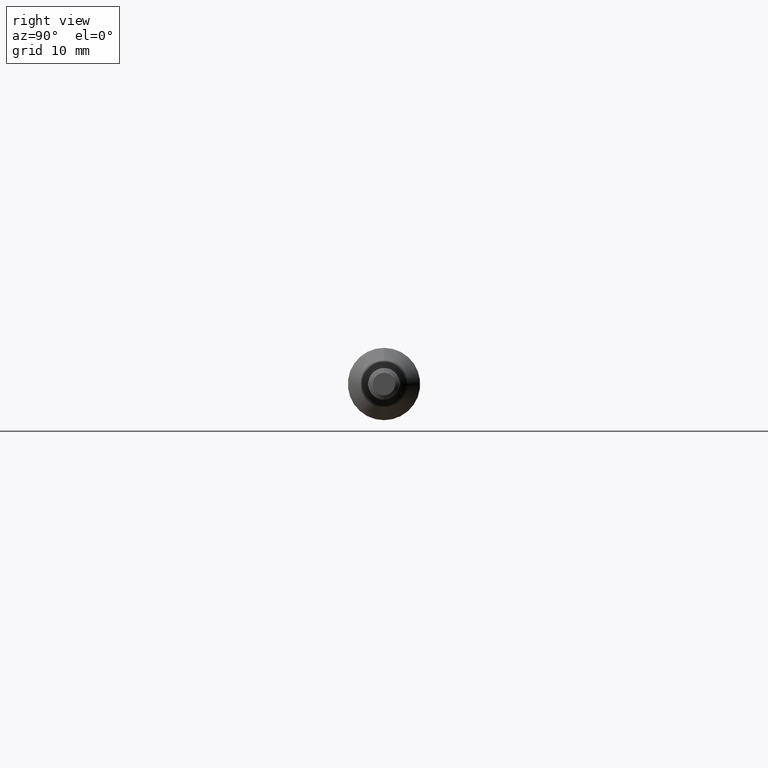
[diagram: clean part render]
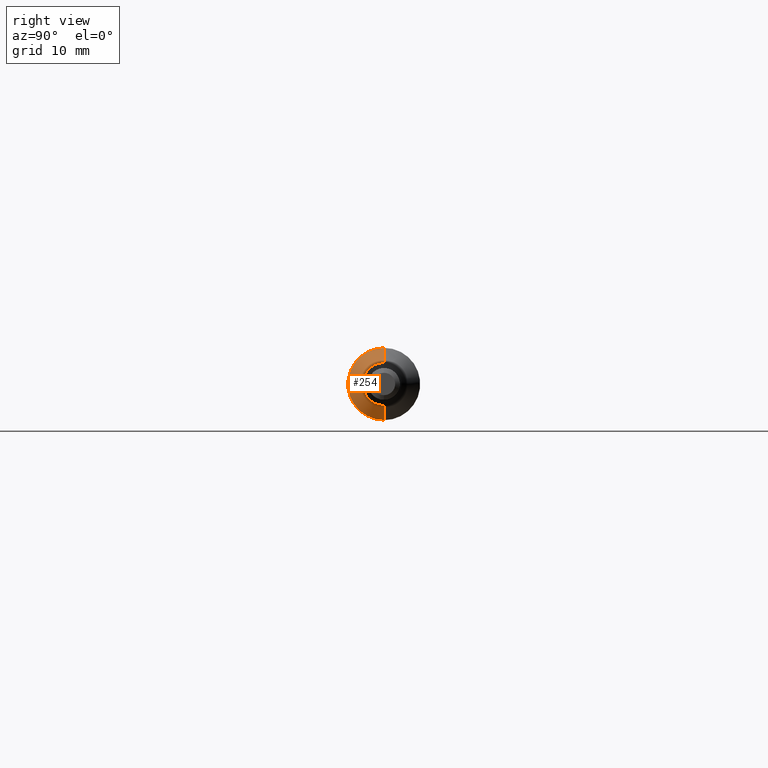
[diagram: same view with one face highlighted and labeled with its STEP entity id]
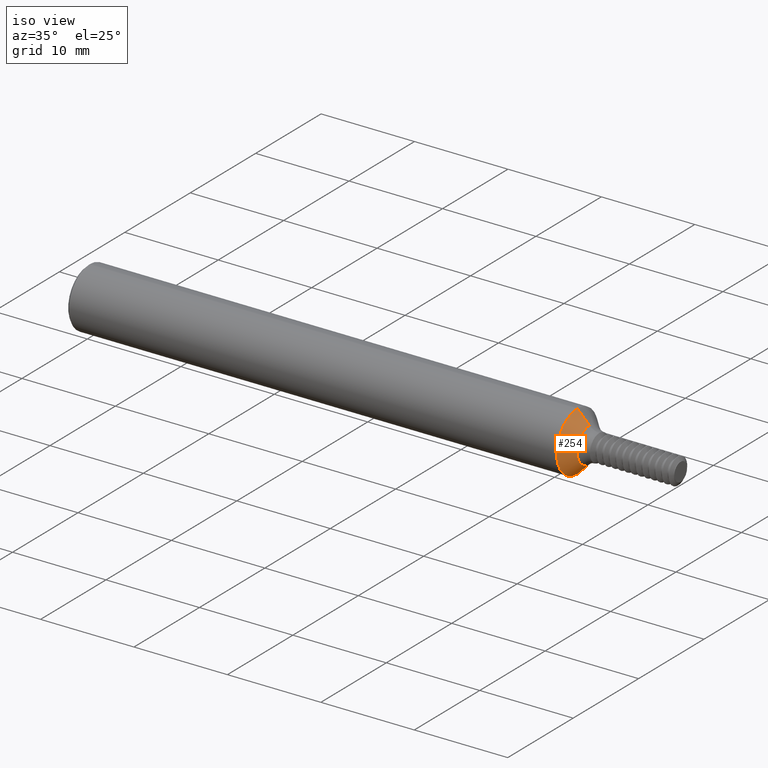
[diagram: same view with one face highlighted and labeled with its STEP entity id]
A machine part, right view. The second image highlights one B-rep face of the part: STEP entity #254.
A second angle (iso view) of the same face is appended — the face is thin or edge-on in the first view.
In plain terms, the highlighted conical surface has half-angle 45 deg.
Its self-contained STEP definition (entity closure, byte-faithful):
#49 = ORIENTED_EDGE ( 'NONE', *, *, #1743, .F. ) ;
#90 = DIRECTION ( 'NONE',  ( 0.000000000000000000, 0.000000000000000000, 1.000000000000000000 ) ) ;
#118 = CARTESIAN_POINT ( 'NONE',  ( 2.064999999999999947, 1.528971528735470422E-17, -0.1248500000000000026 ) ) ;
#178 = LINE ( 'NONE', #1462, #2017 ) ;
#254 = ADVANCED_FACE ( 'NONE', ( #573 ), #1288, .T. ) ;
#259 = EDGE_CURVE ( 'NONE', #1977, #433, #178, .T. ) ;
#432 = CARTESIAN_POINT ( 'NONE',  ( 2.115776406871192616, 9.071398872653704742E-18, -0.07407359312880715252 ) ) ;
#433 = VERTEX_POINT ( 'NONE', #2181 ) ;
#506 = ORIENTED_EDGE ( 'NONE', *, *, #756, .T. ) ;
#532 = AXIS2_PLACEMENT_3D ( 'NONE', #2368, #886, #2424 ) ;
#573 = FACE_OUTER_BOUND ( 'NONE', #1087, .T. ) ;
#660 = VERTEX_POINT ( 'NONE', #118 ) ;
#756 = EDGE_CURVE ( 'NONE', #1097, #1977, #1619, .T. ) ;
#795 = DIRECTION ( 'NONE',  ( -0.7071067811865462405, 0.000000000000000000, 0.7071067811865487940 ) ) ;
#809 = CARTESIAN_POINT ( 'NONE',  ( 2.115776406871192616, 0.000000000000000000, 0.07407359312880715252 ) ) ;
#886 = DIRECTION ( 'NONE',  ( -1.000000000000000000, -0.000000000000000000, -0.000000000000000000 ) ) ;
#1000 = DIRECTION ( 'NONE',  ( 0.000000000000000000, 0.000000000000000000, 1.000000000000000000 ) ) ;
#1087 = EDGE_LOOP ( 'NONE', ( #2346, #506, #1497, #49 ) ) ;
#1097 = VERTEX_POINT ( 'NONE', #2530 ) ;
#1105 = DIRECTION ( 'NONE',  ( -0.7071067811865462405, 8.659560562354948882E-17, -0.7071067811865487940 ) ) ;
#1223 = AXIS2_PLACEMENT_3D ( 'NONE', #1320, #2195, #90 ) ;
#1288 = CONICAL_SURFACE ( 'NONE', #1650, 0.07407359312880715252, 0.7853981633974501664 ) ;
#1320 = CARTESIAN_POINT ( 'NONE',  ( 2.064999999999999947, 0.000000000000000000, 0.000000000000000000 ) ) ;
#1462 = CARTESIAN_POINT ( 'NONE',  ( 2.115776406871192616, 0.000000000000000000, 0.07407359312880715252 ) ) ;
#1497 = ORIENTED_EDGE ( 'NONE', *, *, #259, .T. ) ;
#1524 = LINE ( 'NONE', #432, #2398 ) ;
#1584 = CIRCLE ( 'NONE', #1223, 0.1248500000000000026 ) ;
#1619 = CIRCLE ( 'NONE', #532, 0.07407359312880715252 ) ;
#1650 = AXIS2_PLACEMENT_3D ( 'NONE', #1873, #1917, #1000 ) ;
#1743 = EDGE_CURVE ( 'NONE', #660, #433, #1584, .T. ) ;
#1873 = CARTESIAN_POINT ( 'NONE',  ( 2.115776406871192616, 0.000000000000000000, 0.000000000000000000 ) ) ;
#1917 = DIRECTION ( 'NONE',  ( -1.000000000000000000, -0.000000000000000000, -0.000000000000000000 ) ) ;
#1977 = VERTEX_POINT ( 'NONE', #809 ) ;
#2017 = VECTOR ( 'NONE', #795, 39.37007874015748143 ) ;
#2181 = CARTESIAN_POINT ( 'NONE',  ( 2.064999999999999947, 0.000000000000000000, 0.1248500000000000026 ) ) ;
#2195 = DIRECTION ( 'NONE',  ( -1.000000000000000000, -0.000000000000000000, -0.000000000000000000 ) ) ;
#2346 = ORIENTED_EDGE ( 'NONE', *, *, #2433, .F. ) ;
#2368 = CARTESIAN_POINT ( 'NONE',  ( 2.115776406871192616, 0.000000000000000000, 0.000000000000000000 ) ) ;
#2398 = VECTOR ( 'NONE', #1105, 39.37007874015748143 ) ;
#2424 = DIRECTION ( 'NONE',  ( 0.000000000000000000, 0.000000000000000000, 1.000000000000000000 ) ) ;
#2433 = EDGE_CURVE ( 'NONE', #1097, #660, #1524, .T. ) ;
#2530 = CARTESIAN_POINT ( 'NONE',  ( 2.115776406871192616, 1.218055708000420448E-17, -0.07407359312880715252 ) ) ;